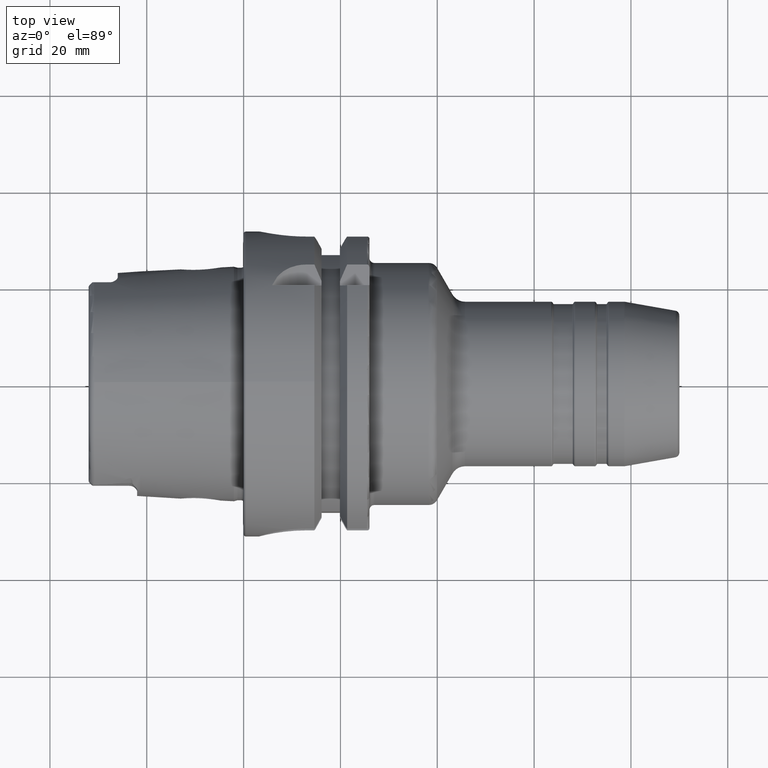
[diagram: clean part render]
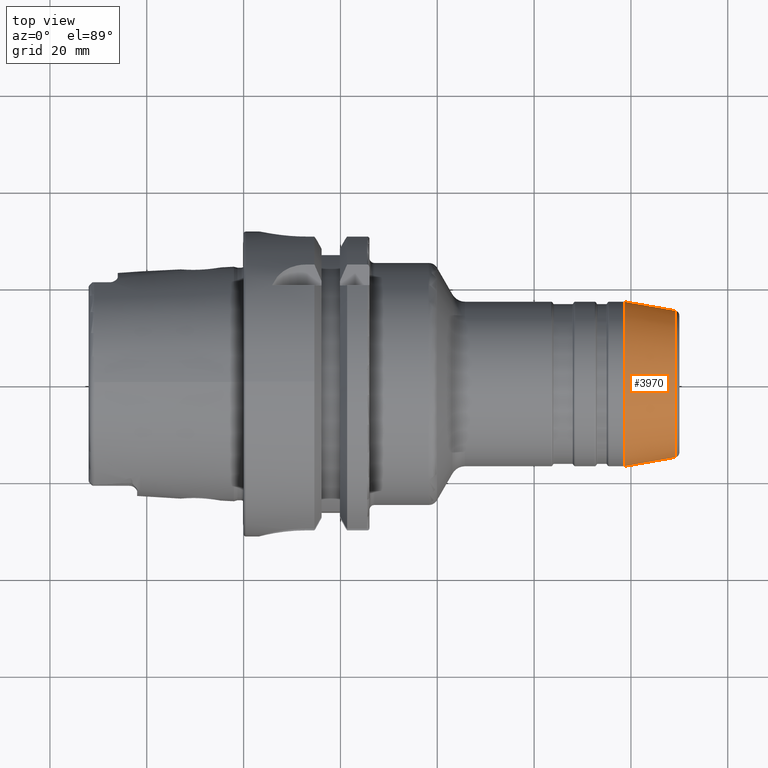
[diagram: same view with one face highlighted and labeled with its STEP entity id]
A machine part, top view. The second image highlights one B-rep face of the part: STEP entity #3970.
In plain terms, the highlighted conical surface has half-angle 10 deg.
Its self-contained STEP definition (entity closure, byte-faithful):
#502=CARTESIAN_POINT('',(8.917364817767E1,0.E0,0.E0));
#503=DIRECTION('',(1.E0,0.E0,0.E0));
#504=DIRECTION('',(0.E0,1.E0,-3.032221524318E-10));
#505=AXIS2_PLACEMENT_3D('',#502,#503,#504);
#507=DIRECTION('',(9.848077530122E-1,1.736481776669E-1,2.140868233310E-9));
#508=VECTOR('',#507,1.054765143215E1);
#509=CARTESIAN_POINT('',(7.878623927121E1,-1.697721162952E1,
-1.276703535413E-7));
#510=LINE('',#509,#508);
#511=CARTESIAN_POINT('',(7.878623927121E1,0.E0,0.E0));
#512=DIRECTION('',(-1.E0,0.E0,0.E0));
#513=DIRECTION('',(0.E0,-1.E0,3.032213867180E-10));
#514=AXIS2_PLACEMENT_3D('',#511,#512,#513);
#521=DIRECTION('',(9.848077530122E-1,-1.736481776669E-1,-2.140868613113E-9));
#522=VECTOR('',#521,1.054765143215E1);
#523=CARTESIAN_POINT('',(7.878623927121E1,1.697721162952E1,1.276703525768E-7));
#524=LINE('',#523,#522);
#3311=CARTESIAN_POINT('',(7.878623927121E1,1.697721162952E1,
-5.147855732017E-9));
#3312=CARTESIAN_POINT('',(7.878623927121E1,-1.697721162952E1,
5.147853652908E-9));
#3313=VERTEX_POINT('',#3311);
#3314=VERTEX_POINT('',#3312);
#3319=CARTESIAN_POINT('',(8.917364817767E1,-1.514563117966E1,
4.592482652022E-9));
#3320=CARTESIAN_POINT('',(8.917364817767E1,1.514563117966E1,
-4.592484506826E-9));
#3321=VERTEX_POINT('',#3319);
#3322=VERTEX_POINT('',#3320);
#3956=CARTESIAN_POINT('',(8.397994372444E1,0.E0,0.E0));
#3957=DIRECTION('',(-1.E0,0.E0,0.E0));
#3958=DIRECTION('',(0.E0,0.E0,-1.E0));
#3959=AXIS2_PLACEMENT_3D('',#3956,#3957,#3958);
#3960=CONICAL_SURFACE('',#3959,1.606142140459E1,1.E1);
#3961=ORIENTED_EDGE('',*,*,#3950,.T.);
#3963=ORIENTED_EDGE('',*,*,#3962,.F.);
#3965=ORIENTED_EDGE('',*,*,#3964,.T.);
#3967=ORIENTED_EDGE('',*,*,#3966,.T.);
#3968=EDGE_LOOP('',(#3961,#3963,#3965,#3967));
#3969=FACE_OUTER_BOUND('',#3968,.F.);
#3970=ADVANCED_FACE('',(#3969),#3960,.T.);
#506=CIRCLE('',#505,1.514563117966E1);
#515=CIRCLE('',#514,1.697721162952E1);
#3950=EDGE_CURVE('',#3322,#3321,#506,.T.);
#3962=EDGE_CURVE('',#3314,#3321,#510,.T.);
#3964=EDGE_CURVE('',#3314,#3313,#515,.T.);
#3966=EDGE_CURVE('',#3313,#3322,#524,.T.);